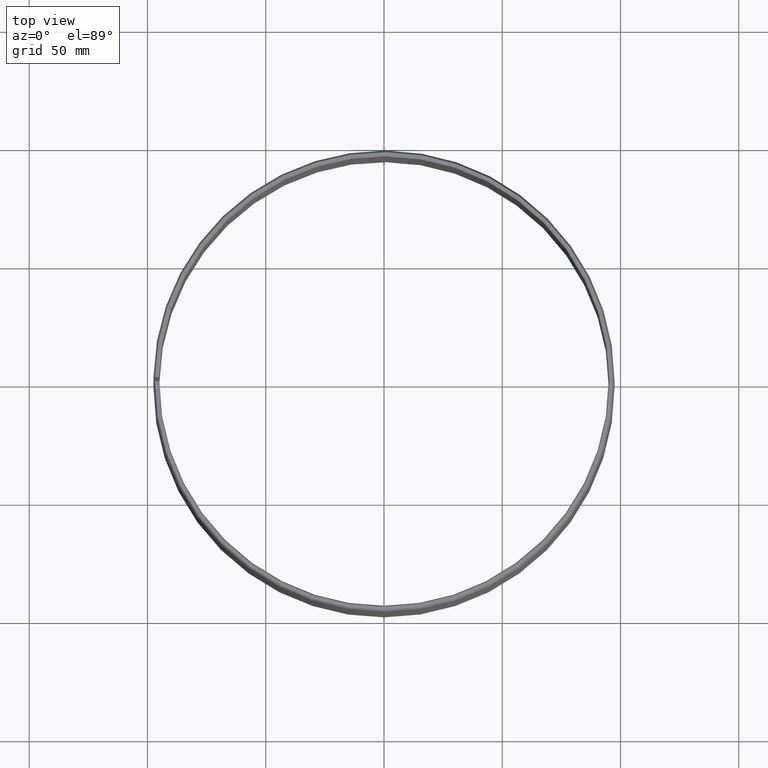
[diagram: clean part render]
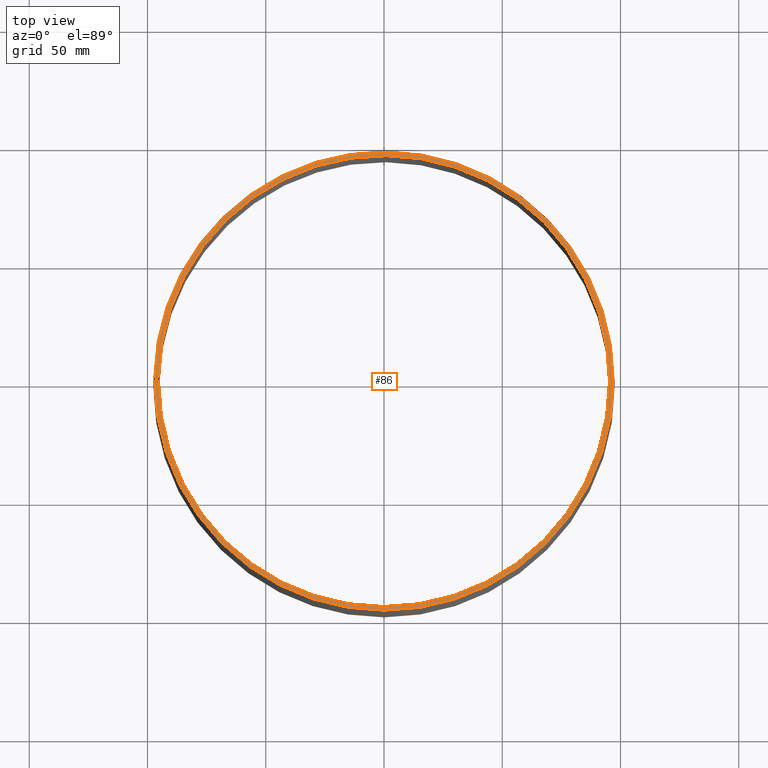
[diagram: same view with one face highlighted and labeled with its STEP entity id]
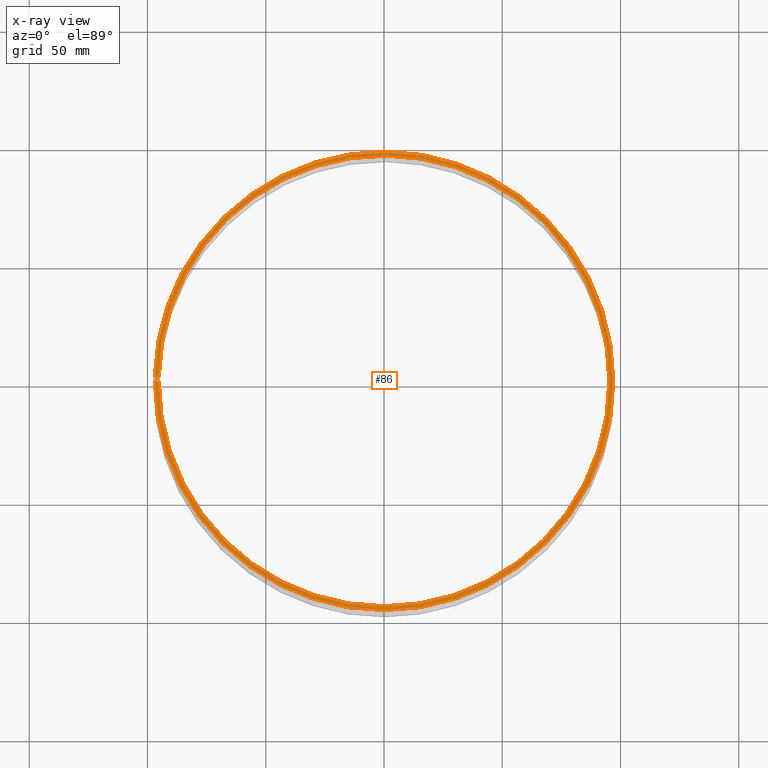
[diagram: x-ray of the same camera — body ghosted, the highlighted face saturated]
A machine part, top view. The second image highlights one B-rep face of the part: STEP entity #86.
The next image is the same camera in x-ray: the body ghosted, the highlighted face saturated — about 0% of this face is hidden behind the body in this view.
In plain terms, the highlighted planar face has unit normal (0, -0, 1).
Its self-contained STEP definition (entity closure, byte-faithful):
#86=ADVANCED_FACE('',(#114),#115,.T.);
#114=FACE_OUTER_BOUND('',#146,.T.);
#115=PLANE('',#147);
#146=EDGE_LOOP('',(#235,#236,#237,#238,#239,#240));
#147=AXIS2_PLACEMENT_3D('',#241,#242,#243);
#235=ORIENTED_EDGE('',*,*,#312,.T.);
#236=ORIENTED_EDGE('',*,*,#285,.F.);
#237=ORIENTED_EDGE('',*,*,#313,.F.);
#238=ORIENTED_EDGE('',*,*,#314,.F.);
#239=ORIENTED_EDGE('',*,*,#288,.T.);
#240=ORIENTED_EDGE('',*,*,#311,.T.);
#241=CARTESIAN_POINT('',(-96.0956318699172,9.62993304910122E-014,140.0));
#242=DIRECTION('',(5.48707263966375E-016,-6.09939603923743E-016,1.0));
#243=DIRECTION('',(-1.0,1.89882151931499E-015,5.48707263966376E-016));
#285=EDGE_CURVE('',#326,#328,#329,.T.);
#288=EDGE_CURVE('',#334,#331,#335,.T.);
#311=EDGE_CURVE('',#331,#369,#371,.T.);
#312=EDGE_CURVE('',#369,#328,#372,.T.);
#313=EDGE_CURVE('',#373,#326,#374,.T.);
#314=EDGE_CURVE('',#334,#373,#375,.T.);
#326=VERTEX_POINT('',#390);
#328=VERTEX_POINT('',#393);
#329=CIRCLE('',#394,95.3464101615137);
#331=VERTEX_POINT('',#397);
#334=VERTEX_POINT('',#401);
#335=CIRCLE('',#402,96.8448535783209);
#369=VERTEX_POINT('',#448);
#371=CIRCLE('',#451,96.8448535783209);
#372=LINE('',#452,#453);
#373=VERTEX_POINT('',#454);
#374=CIRCLE('',#455,95.3464101615137);
#375=LINE('',#456,#457);
#390=CARTESIAN_POINT('',(95.3464101615138,-2.79200495380585E-013,140.0));
#393=CARTESIAN_POINT('',(-95.3318884414254,1.66402430247478,140.0));
#394=AXIS2_PLACEMENT_3D('',#473,#474,#475);
#397=CARTESIAN_POINT('',(96.8448535783209,-2.82266017783278E-013,140.0));
#401=CARTESIAN_POINT('',(-96.8448535783208,9.7343370918827E-014,140.0));
#402=AXIS2_PLACEMENT_3D('',#478,#479,#480);
#448=CARTESIAN_POINT('',(-96.8301036380422,1.69017574600817,140.0));
#451=AXIS2_PLACEMENT_3D('',#521,#522,#523);
#452=CARTESIAN_POINT('',(-96.8301036380422,1.69017574600817,140.0));
#453=VECTOR('',#524,10.0);
#454=CARTESIAN_POINT('',(-95.3464101615137,9.52552900631974E-014,140.0));
#455=AXIS2_PLACEMENT_3D('',#525,#526,#527);
#456=CARTESIAN_POINT('',(-96.8448535783208,9.7343370918827E-014,140.0));
#457=VECTOR('',#528,10.0);
#473=CARTESIAN_POINT('',(7.71723208836051E-014,-8.64597426730337E-014,140.0));
#474=DIRECTION('',(5.48707263966375E-016,-6.09939603923743E-016,1.0));
#475=DIRECTION('',(-1.0,1.89882151931499E-015,5.48707263966376E-016));
#478=CARTESIAN_POINT('',(7.71723208836051E-014,-8.64597426730337E-014,140.0));
#479=DIRECTION('',(5.48707263966375E-016,-6.09939603923743E-016,1.0));
#480=DIRECTION('',(-1.0,1.89882151931499E-015,5.48707263966376E-016));
#521=CARTESIAN_POINT('',(7.71723208836051E-014,-8.64597426730337E-014,140.0));
#522=DIRECTION('',(5.48707263966375E-016,-6.09939603923743E-016,1.0));
#523=DIRECTION('',(-1.0,1.89882151931499E-015,5.48707263966376E-016));
#524=DIRECTION('',(0.999847695156391,-0.0174524064372855,-5.59268607062223E-016));
#525=CARTESIAN_POINT('',(7.71723208836051E-014,-8.64597426730337E-014,140.0));
#526=DIRECTION('',(5.48707263966375E-016,-6.09939603923743E-016,1.0));
#527=DIRECTION('',(-1.0,1.89882151931499E-015,5.48707263966376E-016));
#528=DIRECTION('',(1.0,-1.89882151931499E-015,-5.48707263966376E-016));